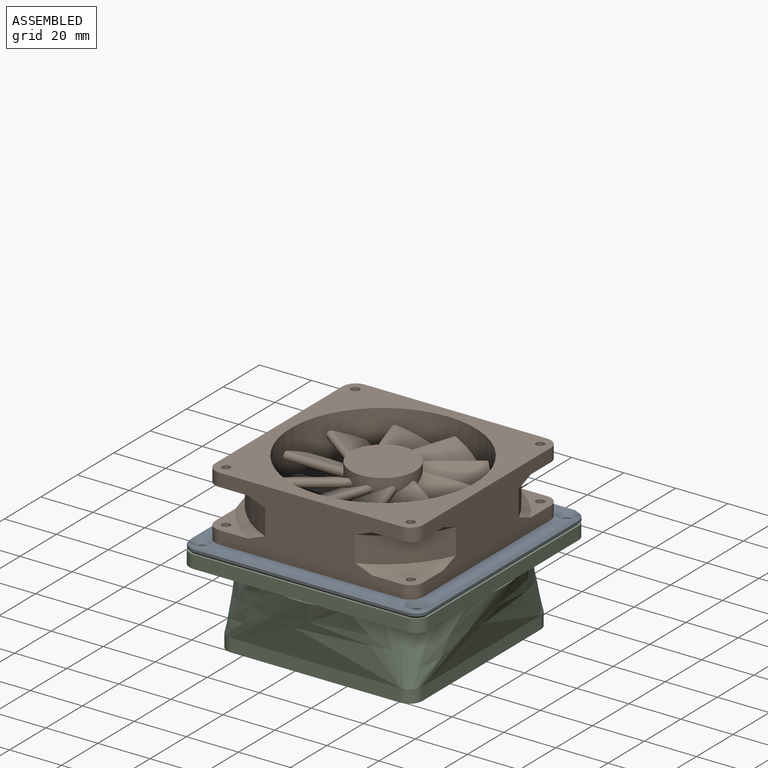
[diagram: assembled view]
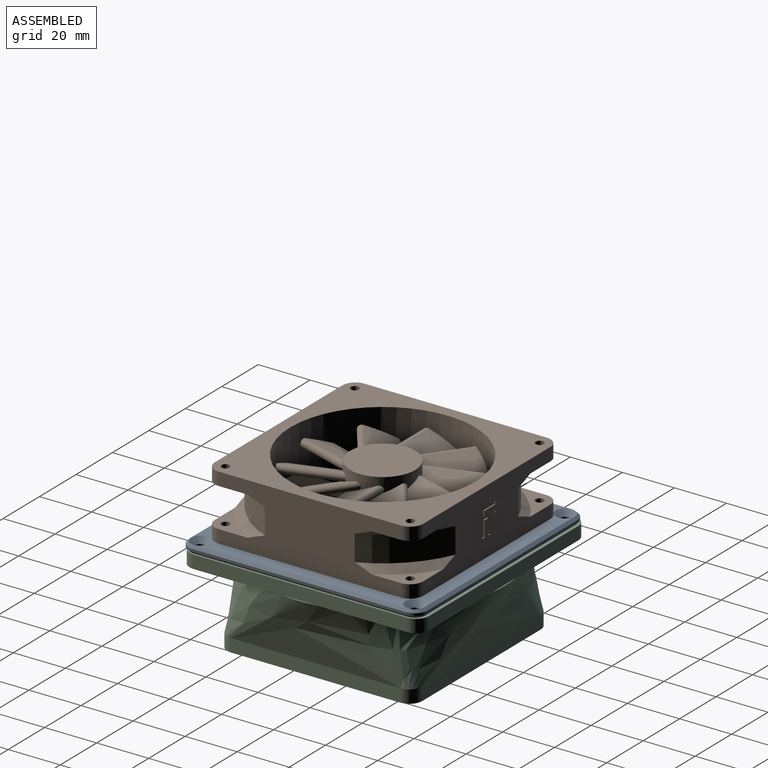
[diagram: assembled view, second angle]
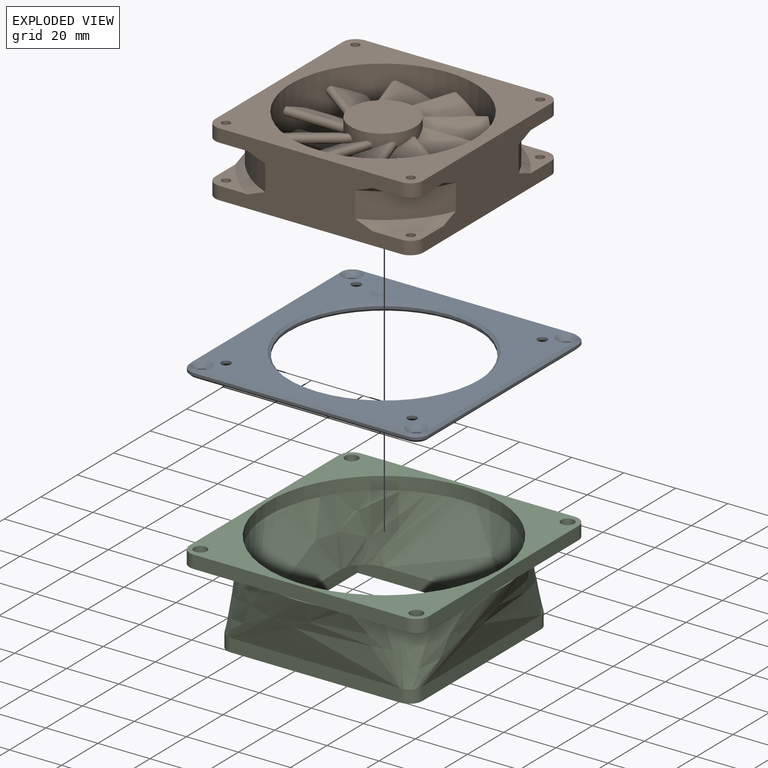
[diagram: exploded view]
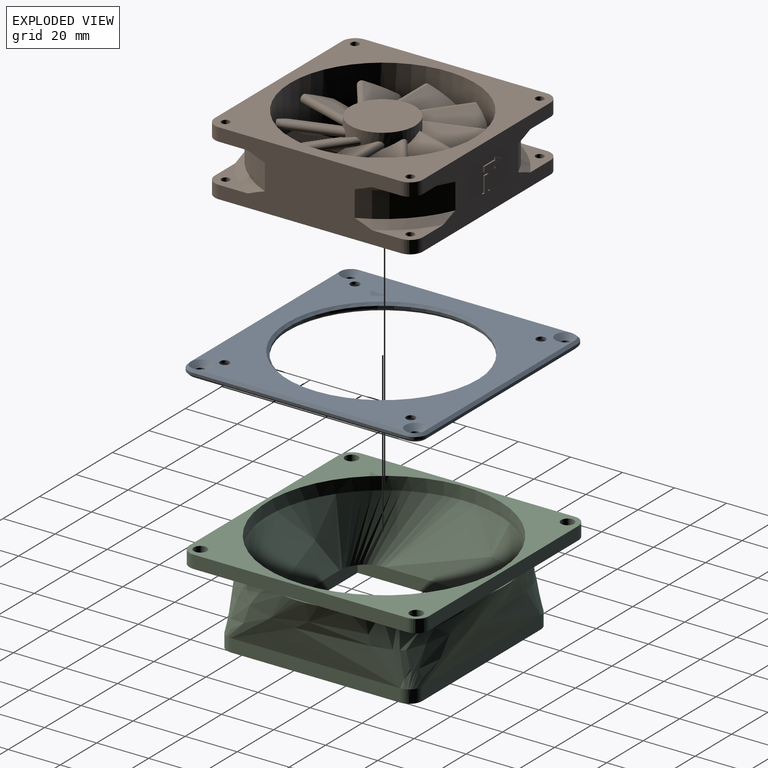
[diagram: exploded view, second angle]
ASSEMBLY  parts=3 mates=2
PART A: 45 faces, bbox 92x92x3 mm
  f0: plane 82x1mm, normal (0,-1,0), area 82mm2, adj f1,f8,f27,f35
  f1: cylinder r=5mm len=5mm, axis (0,0,-1), area 7.9mm2, adj f0,f2,f29,f37
  f2: plane 82x1mm, normal (1,0,0), area 82mm2, adj f1,f3,f31,f39
  f3: cylinder r=5mm len=5mm, axis (0,0,-1), area 7.9mm2, adj f2,f4,f33,f41
  f4: plane 82x1mm, normal (0,1,0), area 82mm2, adj f3,f5,f34,f42
  f5: cylinder r=5mm len=5mm, axis (0,0,-1), area 7.9mm2, adj f4,f6,f32,f40
  f6: plane 82x1mm, normal (-1,0,0), area 82mm2, adj f5,f8,f30,f38
  f7: cylinder r=35.75mm len=71.5mm, axis (0,0,-1), area 224.6mm2, adj f43,f44
  f8: cylinder r=5mm len=5mm, axis (0,0,-1), area 7.9mm2, adj f0,f6,f28,f36
  f9: plane 90x90mm, normal (0,0,1), area 3624.2mm2, adj f11,f13,f16,f17,f23,f24,f25,f26
  f10: plane 90x90mm, normal (0,0,-1), area 3621.2mm2, adj f12,f14,f15,f18,f19,f20,f21,f22
  f11: cylinder r=1.8mm len=3.6mm, axis (0,0,-1), area 11.3mm2, adj f9,f20
  f12: cylinder r=1.8mm len=3.6mm, axis (0,0,-1), area 11.3mm2, adj f10,f23
  f13: cylinder r=1.8mm len=3.6mm, axis (0,0,-1), area 11.3mm2, adj f9,f19
  f14: cylinder r=1.8mm len=3.6mm, axis (0,0,-1), area 11.3mm2, adj f10,f26
  f15: cylinder r=1.8mm len=3.6mm, axis (0,0,-1), area 11.3mm2, adj f10,f25
  f16: cylinder r=1.8mm len=3.6mm, axis (0,0,-1), area 11.3mm2, adj f9,f22
  f17: cylinder r=1.8mm len=3.6mm, axis (0,0,-1), area 11.3mm2, adj f9,f21
  f18: cylinder r=1.8mm len=3.6mm, axis (0,0,-1), area 11.3mm2, adj f10,f24
  f19: cone r=1.8mm half-angle=45deg, axis (0,0,-1), area 49.8mm2, adj f10,f13
  f20: cone r=1.8mm half-angle=45deg, axis (0,0,-1), area 49.8mm2, adj f10,f11
  f21: cone r=1.8mm half-angle=45deg, axis (0,0,-1), area 49.8mm2, adj f10,f17
  f22: cone r=1.8mm half-angle=45deg, axis (0,0,-1), area 49.8mm2, adj f10,f16
  f23: cone r=3.8mm half-angle=45deg, axis (0,0,1), area 49.2mm2, adj f9,f12,f39,f41,f42
  f24: cone r=3.8mm half-angle=45deg, axis (0,0,1), area 49.2mm2, adj f9,f18,f35,f37,f39
  f25: cone r=3.8mm half-angle=45deg, axis (0,0,1), area 49.2mm2, adj f9,f15,f35,f36,f38
  f26: cone r=3.8mm half-angle=45deg, axis (0,0,1), area 49.2mm2, adj f9,f14,f38,f40,f42
  f27: plane 82x1mm, normal (0,-0.71,-0.71), area 116mm2, adj f0,f10,f28,f29
  f28: cone r=5mm half-angle=45deg, axis (0,0,1), area 10mm2, adj f8,f10,f27,f30
  f29: cone r=5mm half-angle=45deg, axis (0,0,1), area 10mm2, adj f1,f10,f27,f31
  f30: plane 82x1mm, normal (-0.71,0,-0.71), area 116mm2, adj f6,f10,f28,f32
  f31: plane 82x1mm, normal (0.71,0,-0.71), area 116mm2, adj f2,f10,f29,f33
  f32: cone r=5mm half-angle=45deg, axis (0,0,1), area 10mm2, adj f5,f10,f30,f34
  f33: cone r=5mm half-angle=45deg, axis (0,0,1), area 10mm2, adj f3,f10,f31,f34
  f34: plane 82x1mm, normal (0,0.71,-0.71), area 116mm2, adj f4,f10,f32,f33
  f35: plane 82.01x1.01mm, normal (0,-0.71,0.71), area 116mm2, adj f0,f9,f24,f25,f36,f37
  f36: cone r=4mm half-angle=45deg, axis (0,0,-1), area 9.5mm2, adj f8,f25,f35,f38
  f37: cone r=4mm half-angle=45deg, axis (0,0,-1), area 9.5mm2, adj f1,f24,f35,f39
  f38: plane 82.01x1.01mm, normal (-0.71,0,0.71), area 116mm2, adj f6,f9,f25,f26,f36,f40
  f39: plane 82.01x1.01mm, normal (0.71,0,0.71), area 116mm2, adj f2,f9,f23,f24,f37,f41
  f40: cone r=4mm half-angle=45deg, axis (0,0,-1), area 9.5mm2, adj f5,f26,f38,f42
  f41: cone r=4mm half-angle=45deg, axis (0,0,-1), area 9.5mm2, adj f3,f23,f39,f42
  f42: plane 82.01x1.01mm, normal (0,0.71,0.71), area 116mm2, adj f4,f9,f23,f26,f40,f41
  f43: cone r=35.75mm half-angle=45deg, axis (0,0,1), area 322.1mm2, adj f7,f9
  f44: cone r=36.75mm half-angle=45deg, axis (0,0,-1), area 322.1mm2, adj f7,f10
PART B: 133 faces, bbox 85.6x25.1x85.6 mm
  f0: plane 23.66x7.81mm, normal (0,-1,0), area 180.7mm2, adj f4,f39,f40,f115
  f1: plane 23.66x8mm, normal (0,-1,0), area 185.1mm2, adj f4,f48,f49,f115
  f2: plane 23.66x8.14mm, normal (0,-1,0), area 185.1mm2, adj f4,f45,f46,f115
  f3: plane 23.66x8mm, normal (0,-1,0), area 185.1mm2, adj f4,f42,f43,f115
  f4: cylinder r=35.5mm len=71mm, axis (0,1,0), area 5321.3mm2, adj f0,f1,f2,f3,f17,f18,f39,f40
  f5: plane 70x25mm, normal (0,0,1), area 1212.6mm2, adj f17,f18,f19,f20,f21,f22,f23,f34
  f6: plane 70x25mm, normal (-1,0,0), area 1252.6mm2, adj f17,f18,f29,f30,f31,f32,f33,f34
  f7: plane 70x25mm, normal (0,0,-1), area 1252.6mm2, adj f17,f18,f24,f25,f26,f27,f28,f29
  f8: cylinder r=1.6mm len=5mm, axis (0,1,0), area 50.3mm2, adj f18,f23
  f9: cylinder r=1.6mm len=5mm, axis (0,1,0), area 50.3mm2, adj f17,f19
  f10: cylinder r=1.6mm len=5mm, axis (0,1,0), area 50.3mm2, adj f18,f28
  f11: cylinder r=1.6mm len=5mm, axis (0,1,0), area 50.3mm2, adj f17,f24
  f12: cylinder r=1.6mm len=5mm, axis (0,1,0), area 50.3mm2, adj f18,f34
  f13: cylinder r=1.6mm len=5mm, axis (0,1,0), area 50.3mm2, adj f17,f38
  f14: cylinder r=1.6mm len=5mm, axis (0,1,0), area 50.3mm2, adj f18,f29
  f15: cylinder r=1.6mm len=5mm, axis (0,1,0), area 50.3mm2, adj f17,f30
  f16: plane 70x25mm, normal (1,0,0), area 1252.6mm2, adj f17,f18,f19,f20,f21,f22,f23,f24
  f17: plane 80x80mm, normal (0,-1,0), area 2387.2mm2, adj f4,f5,f6,f7,f9,f11,f13,f15
  f18: plane 80x80mm, normal (0,1,0), area 3518.7mm2, adj f4,f5,f6,f7,f8,f10,f12,f14
  f19: plane 16.15x16.15mm, normal (0,1,0), area 95.3mm2, adj f5,f9,f16,f20,f58
  f20: cone r=46.57mm half-angle=50deg, axis (0,-1,0), area 108.7mm2, adj f5,f16,f19,f21
  f21: cylinder r=43.57mm len=22.73mm, axis (0,-1,0), area 328.1mm2, adj f5,f16,f20,f22
  f22: cone r=43.57mm half-angle=50deg, axis (0,1,0), area 108.7mm2, adj f5,f16,f21,f23
  f23: plane 16.15x16.15mm, normal (0,-1,0), area 95.3mm2, adj f5,f8,f16,f22,f54
  f24: plane 16.15x16.15mm, normal (0,1,0), area 95.3mm2, adj f7,f11,f16,f25,f57
  f25: cone r=46.57mm half-angle=50deg, axis (0,-1,0), area 108.7mm2, adj f7,f16,f24,f26
  f26: cylinder r=43.57mm len=22.73mm, axis (0,-1,0), area 328.1mm2, adj f7,f16,f25,f27
  f27: cone r=43.57mm half-angle=50deg, axis (0,1,0), area 108.7mm2, adj f7,f16,f26,f28
  f28: plane 16.15x16.15mm, normal (0,-1,0), area 95.3mm2, adj f7,f10,f16,f27,f53
  f29: plane 16.15x16.15mm, normal (0,-1,0), area 95.3mm2, adj f6,f7,f14,f33,f52
  f30: plane 16.15x16.15mm, normal (0,1,0), area 95.3mm2, adj f6,f7,f15,f31,f56
  f31: cone r=46.57mm half-angle=50deg, axis (0,-1,0), area 108.7mm2, adj f6,f7,f30,f32
  f32: cylinder r=43.57mm len=22.73mm, axis (0,-1,0), area 328.1mm2, adj f6,f7,f31,f33
  f33: cone r=43.57mm half-angle=50deg, axis (0,1,0), area 108.7mm2, adj f6,f7,f29,f32
  f34: plane 16.15x16.15mm, normal (0,-1,0), area 95.3mm2, adj f5,f6,f12,f35,f51
  f35: cone r=43.57mm half-angle=50deg, axis (0,1,0), area 108.7mm2, adj f5,f6,f34,f36
  f36: cylinder r=43.57mm len=22.73mm, axis (0,-1,0), area 328.1mm2, adj f5,f6,f35,f37
  f37: cone r=46.57mm half-angle=50deg, axis (0,-1,0), area 108.7mm2, adj f5,f6,f36,f38
  f38: plane 16.15x16.15mm, normal (0,1,0), area 95.3mm2, adj f5,f6,f13,f37,f55
  f39: plane 26.11x8mm, normal (0,0,1), area 208.9mm2, adj f0,f4,f18,f50,f59
  f40: plane 26.05x8mm, normal (0,0,-1), area 208.4mm2, adj f0,f4,f18,f41,f114
  f41: cylinder r=10mm len=8mm, axis (0,1,0), area 61.5mm2, adj f18,f40,f42,f114
  f42: plane 26.11x8mm, normal (1,0,0), area 208.9mm2, adj f3,f4,f18,f41,f114
  f43: plane 26.11x8mm, normal (-1,0,0), area 208.9mm2, adj f3,f4,f18,f44,f61
  f44: cylinder r=10mm len=8mm, axis (0,1,0), area 59.8mm2, adj f18,f43,f45,f61
  f45: plane 26.09x8mm, normal (0.01,0,-1), area 208.7mm2, adj f2,f4,f18,f44,f61
  f46: plane 26.13x8mm, normal (-0.01,0,1), area 209mm2, adj f2,f4,f18,f47,f60
  f47: cylinder r=10mm len=8mm, axis (0,1,0), area 59.8mm2, adj f18,f46,f48,f60
  f48: plane 26.11x8mm, normal (-1,0,0), area 208.9mm2, adj f1,f4,f18,f47,f60
  f49: plane 26.11x8mm, normal (1,0,0), area 208.9mm2, adj f1,f4,f18,f50,f59
  f50: cylinder r=10mm len=8mm, axis (0,1,0), area 59.8mm2, adj f18,f39,f49,f59
  f51: cylinder r=5mm len=5mm, axis (0,-1,0), area 39.3mm2, adj f5,f6,f18,f34
  f52: cylinder r=5mm len=5mm, axis (0,1,0), area 39.3mm2, adj f6,f7,f18,f29
  f53: cylinder r=5mm len=5mm, axis (0,-1,0), area 39.3mm2, adj f7,f16,f18,f28
  f54: cylinder r=5mm len=5mm, axis (0,1,0), area 39.3mm2, adj f5,f16,f18,f23
  f55: cylinder r=5mm len=5mm, axis (0,-1,0), area 39.3mm2, adj f5,f6,f17,f38
  f56: cylinder r=5mm len=5mm, axis (0,1,0), area 39.3mm2, adj f6,f7,f17,f30
  f57: cylinder r=5mm len=5mm, axis (0,-1,0), area 39.3mm2, adj f7,f16,f17,f24
  f58: cylinder r=5mm len=5mm, axis (0,1,0), area 39.3mm2, adj f5,f16,f17,f19
  f59: plane 7.84x7.84mm, normal (0,1,0), area 23.7mm2, adj f39,f49,f50,f115
  f60: plane 7.86x7.85mm, normal (0,1,0), area 23.7mm2, adj f46,f47,f48,f115
  f61: plane 7.84x7.84mm, normal (0,1,0), area 23.7mm2, adj f43,f44,f45,f115
  f62: cylinder r=12.5mm len=25mm, axis (0,1,0), area 311mm2, adj f63,f64,f66,f68,f70,f72,f74,f76
  f63: plane 25x25mm, normal (0,-1,0), area 490.9mm2, adj f62
  f64: cylinder r=1.5mm len=23.39mm, axis (-1,0,0), area 107.2mm2, adj f62,f84,f85,f86,f113
  f65: cylinder r=1.5mm len=22.58mm, axis (1,0,0), area 104mm2, adj f84,f85,f86,f115
  f66: cylinder r=1.5mm len=20.15mm, axis (-0.81,0,0.59), area 107.2mm2, adj f62,f86,f87,f88,f89
  f67: cylinder r=1.5mm len=19.5mm, axis (0.81,0,-0.59), area 104mm2, adj f87,f88,f89,f115
  f68: cylinder r=1.5mm len=22.89mm, axis (-0.31,0,0.95), area 107.2mm2, adj f62,f89,f90,f91,f92
  f69: cylinder r=1.5mm len=22.12mm, axis (0.31,0,-0.95), area 104mm2, adj f90,f91,f92,f115
  f70: cylinder r=1.5mm len=22.89mm, axis (0.31,0,0.95), area 107.2mm2, adj f62,f92,f93,f94,f95
  f71: cylinder r=1.5mm len=22.12mm, axis (-0.31,0,-0.95), area 104mm2, adj f93,f94,f95,f115
  f72: cylinder r=1.5mm len=20.15mm, axis (0.81,0,0.59), area 107.2mm2, adj f62,f95,f96,f97,f98
  f73: cylinder r=1.5mm len=19.5mm, axis (-0.81,0,-0.59), area 104mm2, adj f96,f97,f98,f115
  f74: cylinder r=1.5mm len=23.39mm, axis (1,0,0), area 107.2mm2, adj f62,f98,f99,f100,f101
  f75: cylinder r=1.5mm len=22.58mm, axis (-1,0,0), area 104mm2, adj f99,f100,f101,f115
  f76: cylinder r=1.5mm len=20.15mm, axis (0.81,0,-0.59), area 107.2mm2, adj f62,f101,f102,f103,f104
  f77: cylinder r=1.5mm len=19.5mm, axis (-0.81,0,0.59), area 104mm2, adj f102,f103,f104,f115
  f78: cylinder r=1.5mm len=22.89mm, axis (0.31,0,-0.95), area 107.2mm2, adj f62,f104,f105,f106,f107
  f79: cylinder r=1.5mm len=22.12mm, axis (-0.31,0,0.95), area 104mm2, adj f105,f106,f107,f115
  f80: cylinder r=1.5mm len=22.89mm, axis (-0.31,0,-0.95), area 107.2mm2, adj f62,f107,f108,f109,f110
  f81: cylinder r=1.5mm len=22.12mm, axis (0.31,0,0.95), area 104mm2, adj f108,f109,f110,f115
  f82: cylinder r=1.5mm len=20.15mm, axis (-0.81,0,-0.59), area 107.2mm2, adj f62,f110,f111,f112,f113
  f83: cylinder r=1.5mm len=19.5mm, axis (0.81,0,0.59), area 104mm2, adj f111,f112,f113,f115
  f84: cylinder r=33.84mm len=14.97mm, axis (0,-0.92,-0.39), area 43.4mm2, adj f64,f65,f85,f86
  f85: plane 23.06x11.03mm, normal (0,0.92,0.39), area 259.6mm2, adj f64,f65,f84,f113,f115
  f86: plane 22.69x11.1mm, normal (0,-0.92,-0.39), area 258.8mm2, adj f62,f64,f65,f66,f84,f88,f115
  f87: cylinder r=33.84mm len=12.11mm, axis (-0.23,-0.92,-0.32), area 43.4mm2, adj f66,f67,f88,f89
  f88: plane 23.94x22.16mm, normal (0.23,0.92,0.32), area 259.6mm2, adj f66,f67,f86,f87,f115
  f89: plane 24.42x21.97mm, normal (-0.23,-0.92,-0.32), area 258.8mm2, adj f62,f66,f67,f68,f87,f91,f115
  f90: cylinder r=33.84mm len=14.24mm, axis (-0.37,-0.92,-0.12), area 43.4mm2, adj f68,f69,f91,f92
  f91: plane 24.83x17.16mm, normal (0.37,0.92,0.12), area 259.6mm2, adj f68,f69,f89,f90,f115
  f92: plane 24.48x17.38mm, normal (-0.37,-0.92,-0.12), area 258.8mm2, adj f62,f68,f69,f70,f90,f94,f115
  f93: cylinder r=33.84mm len=14.24mm, axis (-0.37,-0.92,0.12), area 43.4mm2, adj f70,f71,f94,f95
  f94: plane 23.93x17.45mm, normal (0.37,0.92,-0.12), area 259.6mm2, adj f70,f71,f92,f93,f115
  f95: plane 24.48x17.38mm, normal (-0.37,-0.92,0.12), area 258.8mm2, adj f62,f70,f71,f72,f93,f97,f115
  f96: cylinder r=33.84mm len=12.11mm, axis (-0.23,-0.92,0.32), area 43.4mm2, adj f72,f73,f97,f98
  f97: plane 24.71x21.61mm, normal (0.23,0.92,-0.32), area 259.6mm2, adj f72,f73,f95,f96,f115
  f98: plane 24.42x21.97mm, normal (-0.23,-0.92,0.32), area 258.8mm2, adj f62,f72,f73,f74,f96,f100,f115
  f99: cylinder r=33.84mm len=14.97mm, axis (0,-0.92,0.39), area 43.4mm2, adj f74,f75,f100,f101
  f100: plane 23.06x11.03mm, normal (0,0.92,-0.39), area 259.6mm2, adj f74,f75,f98,f99,f115
  f101: plane 22.69x11.1mm, normal (0,-0.92,0.39), area 258.8mm2, adj f62,f74,f75,f76,f99,f103,f115
  f102: cylinder r=33.84mm len=12.11mm, axis (0.23,-0.92,0.32), area 43.4mm2, adj f76,f77,f103,f104
  f103: plane 23.94x22.16mm, normal (-0.23,0.92,-0.32), area 259.6mm2, adj f76,f77,f101,f102,f115
  f104: plane 24.42x21.97mm, normal (0.23,-0.92,0.32), area 258.8mm2, adj f62,f76,f77,f78,f102,f106,f115
  f105: cylinder r=33.84mm len=14.24mm, axis (0.37,-0.92,0.12), area 43.4mm2, adj f78,f79,f106,f107
  f106: plane 24.83x17.16mm, normal (-0.37,0.92,-0.12), area 259.6mm2, adj f78,f79,f104,f105,f115
  f107: plane 24.48x17.38mm, normal (0.37,-0.92,0.12), area 258.8mm2, adj f62,f78,f79,f80,f105,f109,f115,f116
  f108: cylinder r=33.84mm len=14.24mm, axis (0.37,-0.92,-0.12), area 43.4mm2, adj f80,f81,f109,f110
  f109: plane 23.97x17.49mm, normal (-0.37,0.92,0.12), area 259.6mm2, adj f80,f81,f107,f108,f115,f116
  f110: plane 24.48x17.38mm, normal (0.37,-0.92,-0.12), area 258.8mm2, adj f62,f80,f81,f82,f108,f112,f115
  f111: cylinder r=33.84mm len=12.11mm, axis (0.23,-0.92,-0.32), area 43.4mm2, adj f82,f83,f112,f113
  f112: plane 24.71x21.61mm, normal (-0.23,0.92,0.32), area 259.6mm2, adj f82,f83,f110,f111,f115
  f113: plane 24.42x21.97mm, normal (0.23,-0.92,-0.32), area 258.8mm2, adj f62,f64,f82,f83,f85,f111,f115
  f114: plane 8.03x7.91mm, normal (0,1,0), area 24.2mm2, adj f40,f41,f42,f115
  f115: cylinder r=12.5mm len=25mm, axis (0,1,0), area 413.3mm2, adj f0,f1,f2,f3,f59,f60,f61,f65
  f116: cylinder r=12.5mm len=2.6mm, axis (0,1,0), area 0.1mm2, adj f107,f109,f115
  f117: plane 4x2mm, normal (-0.45,0.89,0), area 2.2mm2, adj f5,f118,f123,f124
  f118: plane 4x2mm, normal (-0.45,-0.89,0), area 2.2mm2, adj f5,f117,f119,f124
  f119: plane 1x0.5mm, normal (1,0,0), area 0.5mm2, adj f5,f118,f120,f124
  f120: plane 6x0.5mm, normal (0,-1,0), area 3mm2, adj f5,f119,f121,f124
  f121: plane 2x0.5mm, normal (1,0,0), area 1mm2, adj f5,f120,f122,f124
  f122: plane 6x0.5mm, normal (0,1,0), area 3mm2, adj f5,f121,f123,f124
  f123: plane 1x0.5mm, normal (1,0,0), area 0.5mm2, adj f5,f117,f122,f124
  f124: plane 10x4mm, normal (0,0,1), area 20mm2, adj f117,f118,f119,f120,f121,f122,f123
  f125: plane 4x2mm, normal (0.89,0.45,0), area 2.2mm2, adj f5,f126,f131,f132
  f126: plane 4x2mm, normal (-0.89,0.45,0), area 2.2mm2, adj f5,f125,f127,f132
  f127: plane 1x0.5mm, normal (0,-1,0), area 0.5mm2, adj f5,f126,f128,f132
  f128: plane 6x0.5mm, normal (-1,0,0), area 3mm2, adj f5,f127,f129,f132
  f129: plane 2x0.5mm, normal (0,-1,0), area 1mm2, adj f5,f128,f130,f132
  f130: plane 6x0.5mm, normal (1,0,0), area 3mm2, adj f5,f129,f131,f132
  f131: plane 1x0.5mm, normal (0,-1,0), area 0.5mm2, adj f5,f125,f130,f132
  f132: plane 10x4mm, normal (0,0,1), area 20mm2, adj f125,f126,f127,f128,f129,f130,f131
PART C: 38 faces, bbox 94.2x94.2x36 mm
  f0: plane 75x75mm, normal (0,0,-1), area 979.5mm2, adj f1,f2,f3,f4,f5,f6,f7,f8
  f1: plane 65x5mm, normal (1,0,0), area 325mm2, adj f0,f2,f8,f18
  f2: cylinder r=5mm len=5mm, axis (0,0,1), area 39.3mm2, adj f0,f1,f3,f18
  f3: plane 65x5mm, normal (0,1,0), area 325mm2, adj f0,f2,f4,f18
  f4: cylinder r=5mm len=5mm, axis (0,0,1), area 39.3mm2, adj f0,f3,f5,f18
  f5: plane 65x5mm, normal (-1,0,0), area 325mm2, adj f0,f4,f6,f18
  f6: cylinder r=5mm len=5mm, axis (0,0,1), area 39.3mm2, adj f0,f5,f7,f18
  f7: plane 65x5mm, normal (0,-1,0), area 325mm2, adj f0,f6,f8,f18
  f8: cylinder r=5mm len=5mm, axis (0,0,1), area 39.3mm2, adj f0,f1,f7,f18
  f9: plane 68x5mm, normal (1,0,0), area 340mm2, adj f0,f10,f12,f16
  f10: plane 68x5mm, normal (0,1,0), area 340mm2, adj f0,f9,f11,f16
  f11: plane 68x5mm, normal (-1,0,0), area 340mm2, adj f0,f10,f12,f16
  f12: plane 68x5mm, normal (0,-1,0), area 340mm2, adj f0,f9,f11,f16
  f13: plane 14.48x1.44mm, normal (0,0,1), area 4.5mm2, adj f18,f30
  f14: plane 14.48x1.44mm, normal (0,0,1), area 4.5mm2, adj f18,f28
  f15: plane 14.48x1.44mm, normal (0,0,1), area 4.5mm2, adj f18,f24
  f16: plane 69.03x69.03mm, normal (0,0,-1), area 220.9mm2, adj f9,f10,f11,f12,f19
  f17: plane 14.48x1.44mm, normal (0,0,1), area 4.5mm2, adj f18,f26
  f18: bspline ~92.96x92.95mm, area 7423.7mm2, adj f1,f2,f3,f4,f5,f6,f7,f8
  f19: bspline ~88.97x88.96mm, area 6892.2mm2, adj f16,f33
  f20: plane 39.2x39.2mm, normal (0,0,-1), area 397.3mm2, adj f18,f24,f25,f26,f37
  f21: plane 39.2x39.2mm, normal (0,0,-1), area 397.3mm2, adj f18,f26,f27,f28,f35
  f22: plane 39.2x39.2mm, normal (0,0,-1), area 397.3mm2, adj f18,f28,f29,f30,f36
  f23: plane 39.2x39.2mm, normal (0,0,-1), area 397.3mm2, adj f18,f24,f30,f31,f34
  f24: plane 82x5mm, normal (1,0,0), area 410mm2, adj f15,f20,f23,f25,f31,f32
  f25: cylinder r=5mm len=5mm, axis (0,0,-1), area 39.3mm2, adj f20,f24,f26,f32
  f26: plane 82x5mm, normal (0,1,0), area 410mm2, adj f17,f20,f21,f25,f27,f32
  f27: cylinder r=5mm len=5mm, axis (0,0,-1), area 39.3mm2, adj f21,f26,f28,f32
  f28: plane 82x5mm, normal (-1,0,0), area 410mm2, adj f14,f21,f22,f27,f29,f32
  f29: cylinder r=5mm len=5mm, axis (0,0,-1), area 39.3mm2, adj f22,f28,f30,f32
  f30: plane 82x5mm, normal (0,-1,0), area 410mm2, adj f13,f22,f23,f29,f31,f32
  f31: cylinder r=5mm len=5mm, axis (0,0,-1), area 39.3mm2, adj f23,f24,f30,f32
  f32: plane 92x92mm, normal (0,0,1), area 2142.9mm2, adj f24,f25,f26,f27,f28,f29,f30,f31
  f33: cylinder r=44.5mm len=89mm, axis (0,0,-1), area 1398mm2, adj f19,f32
  f34: cylinder r=2.5mm len=5mm, axis (0,0,-1), area 78.5mm2, adj f23,f32
  f35: cylinder r=2.5mm len=5mm, axis (0,0,-1), area 78.5mm2, adj f21,f32
  f36: cylinder r=2.5mm len=5mm, axis (0,0,-1), area 78.5mm2, adj f22,f32
  f37: cylinder r=2.5mm len=5mm, axis (0,0,-1), area 78.5mm2, adj f20,f32
PLACE A at identity fixed
PLACE B rot(axis=(-1,0,0),90deg) t=(-0.25,-0.25,3)mm
PLACE C t=(-0.25,0.25,-5)mm
MATE fastened C.f34 <-> A.f18  axis (0,0,1) through (41.25,-41.25,0)mm
MATE fastened B.f14 <-> A.f16  axis (0,0,-1) through (-35.75,-35.75,3)mm
